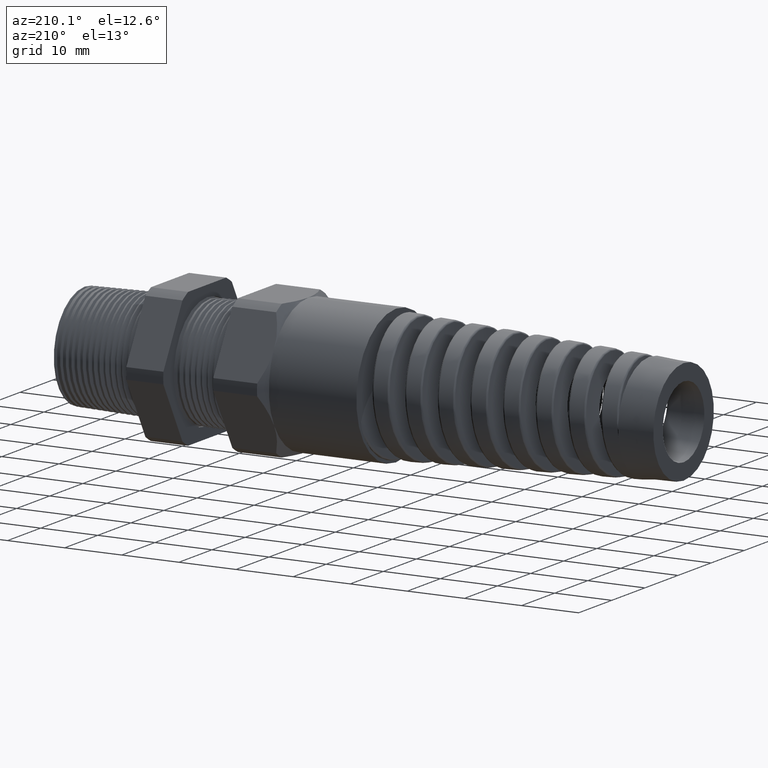
[diagram: clean part render]
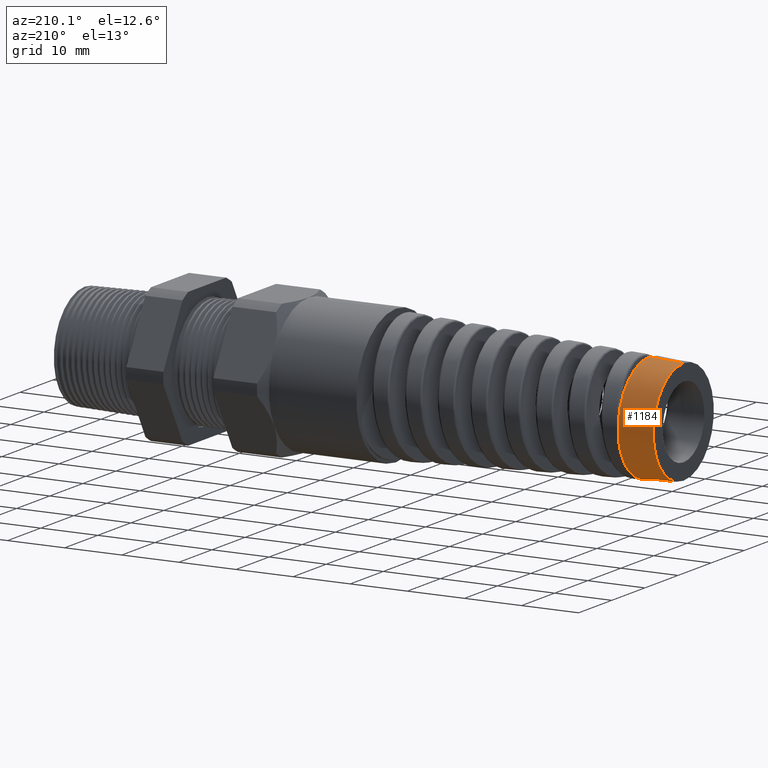
[diagram: same view with one face highlighted and labeled with its STEP entity id]
A machine part, auxiliary view. The second image highlights one B-rep face of the part: STEP entity #1184.
In plain terms, the highlighted conical surface has half-angle 3 deg.
Its self-contained STEP definition (entity closure, byte-faithful):
#390 = VERTEX_POINT ( 'NONE', #2857 ) ;
#393 = EDGE_CURVE ( 'NONE', #422, #390, #2856, .T. ) ;
#421 = VERTEX_POINT ( 'NONE', #2931 ) ;
#422 = VERTEX_POINT ( 'NONE', #2929 ) ;
#497 = EDGE_CURVE ( 'NONE', #421, #1482, #3196, .T. ) ;
#1138 = EDGE_CURVE ( 'NONE', #422, #421, #4277, .T. ) ;
#1184 = ADVANCED_FACE ( 'NONE', ( #4498 ), #4482, .T. ) ;
#1185 = ORIENTED_EDGE ( 'NONE', *, *, #497, .F. ) ;
#1186 = ORIENTED_EDGE ( 'NONE', *, *, #1138, .F. ) ;
#1187 = ORIENTED_EDGE ( 'NONE', *, *, #393, .T. ) ;
#1188 = ORIENTED_EDGE ( 'NONE', *, *, #1189, .T. ) ;
#1189 = EDGE_CURVE ( 'NONE', #390, #1419, #4483, .T. ) ;
#1190 = ORIENTED_EDGE ( 'NONE', *, *, #1484, .F. ) ;
#1207 = EDGE_LOOP ( 'NONE', ( #1185, #1186, #1187, #1188, #1190 ) ) ;
#1419 = VERTEX_POINT ( 'NONE', #11380 ) ;
#1482 = VERTEX_POINT ( 'NONE', #11586 ) ;
#1484 = EDGE_CURVE ( 'NONE', #1482, #1419, #11585, .T. ) ;
#2853 = DIRECTION ( 'NONE',  ( 0.9986295347545738300, 0.0000000000000000000, 0.05233595624294395300 ) ) ;
#2854 = VECTOR ( 'NONE', #2853, 39.37007874015748900 ) ;
#2855 = CARTESIAN_POINT ( 'NONE',  ( -3.613780000000000200, 0.0000000000000000000, 0.3720344495207316100 ) ) ;
#2856 = LINE ( 'NONE', #2855, #2854 ) ;
#2857 = CARTESIAN_POINT ( 'NONE',  ( -3.613780000000000200, 0.0000000000000000000, 0.3720344495207316100 ) ) ;
#2929 = CARTESIAN_POINT ( 'NONE',  ( -3.850000472440945600, 0.0000000000000000000, 0.3596546591389108700 ) ) ;
#2931 = CARTESIAN_POINT ( 'NONE',  ( -3.850000472440945600, -4.480303624455055900E-017, -0.3596546591389108700 ) ) ;
#3189 = DIRECTION ( 'NONE',  ( 0.9986295347545738300, -6.409306129323724800E-018, -0.05233595624294395300 ) ) ;
#3190 = VECTOR ( 'NONE', #3189, 39.37007874015748900 ) ;
#3191 = CARTESIAN_POINT ( 'NONE',  ( -3.613780000000000200, -4.556107977781115500E-017, -0.3720344495207316100 ) ) ;
#3196 = LINE ( 'NONE', #3191, #3190 ) ;
#4273 = DIRECTION ( 'NONE',  ( 0.0000000000000000000, 0.0000000000000000000, 1.000000000000000000 ) ) ;
#4274 = DIRECTION ( 'NONE',  ( -1.000000000000000000, 0.0000000000000000000, 0.0000000000000000000 ) ) ;
#4275 = CARTESIAN_POINT ( 'NONE',  ( -3.850000472440945600, 0.0000000000000000000, 0.0000000000000000000 ) ) ;
#4276 = AXIS2_PLACEMENT_3D ( 'NONE', #4275, #4274, #4273 ) ;
#4277 = CIRCLE ( 'NONE', #4276, 0.3596546591389108700 ) ;
#4475 = DIRECTION ( 'NONE',  ( 0.0000000000000000000, 0.0000000000000000000, 1.000000000000000000 ) ) ;
#4476 = DIRECTION ( 'NONE',  ( -1.000000000000000000, 0.0000000000000000000, 0.0000000000000000000 ) ) ;
#4477 = CARTESIAN_POINT ( 'NONE',  ( -3.613780000000000200, 0.0000000000000000000, 0.0000000000000000000 ) ) ;
#4478 = AXIS2_PLACEMENT_3D ( 'NONE', #4477, #4476, #4475 ) ;
#4479 = DIRECTION ( 'NONE',  ( 0.0000000000000000000, 0.0000000000000000000, 1.000000000000000000 ) ) ;
#4480 = DIRECTION ( 'NONE',  ( 1.000000000000000000, 0.0000000000000000000, 0.0000000000000000000 ) ) ;
#4481 = AXIS2_PLACEMENT_3D ( 'NONE', #4499, #4480, #4479 ) ;
#4482 = CONICAL_SURFACE ( 'NONE', #4481, 0.3720344495207316100, 0.05235987755983000100 ) ;
#4483 = CIRCLE ( 'NONE', #4478, 0.3720344495207316100 ) ;
#4498 = FACE_OUTER_BOUND ( 'NONE', #1207, .T. ) ;
#4499 = CARTESIAN_POINT ( 'NONE',  ( -3.613780000000000200, 0.0000000000000000000, 0.0000000000000000000 ) ) ;
#11380 = CARTESIAN_POINT ( 'NONE',  ( -3.613780000000000200, 0.3677111361746269700, -0.05655220564543374900 ) ) ;
#11581 = DIRECTION ( 'NONE',  ( 0.0000000000000000000, 0.0000000000000000000, -1.000000000000000000 ) ) ;
#11582 = DIRECTION ( 'NONE',  ( 1.000000000000000000, 0.0000000000000000000, 0.0000000000000000000 ) ) ;
#11583 = CARTESIAN_POINT ( 'NONE',  ( -3.613780000000000200, 0.0000000000000000000, 0.0000000000000000000 ) ) ;
#11584 = AXIS2_PLACEMENT_3D ( 'NONE', #11583, #11582, #11581 ) ;
#11585 = CIRCLE ( 'NONE', #11584, 0.3720344495207378300 ) ;
#11586 = CARTESIAN_POINT ( 'NONE',  ( -3.613780000000000200, -4.556107977781115500E-017, -0.3720344495207316100 ) ) ;